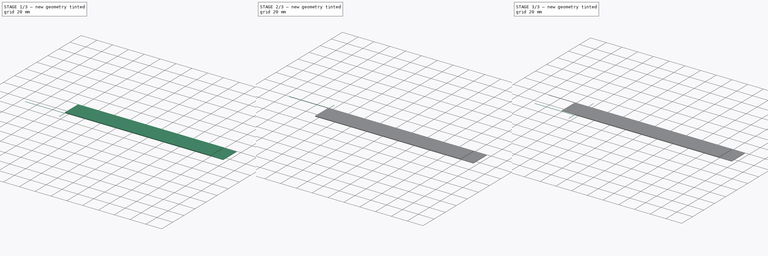
[diagram: build sequence overview — one tinted view per stage of 3, left to right]
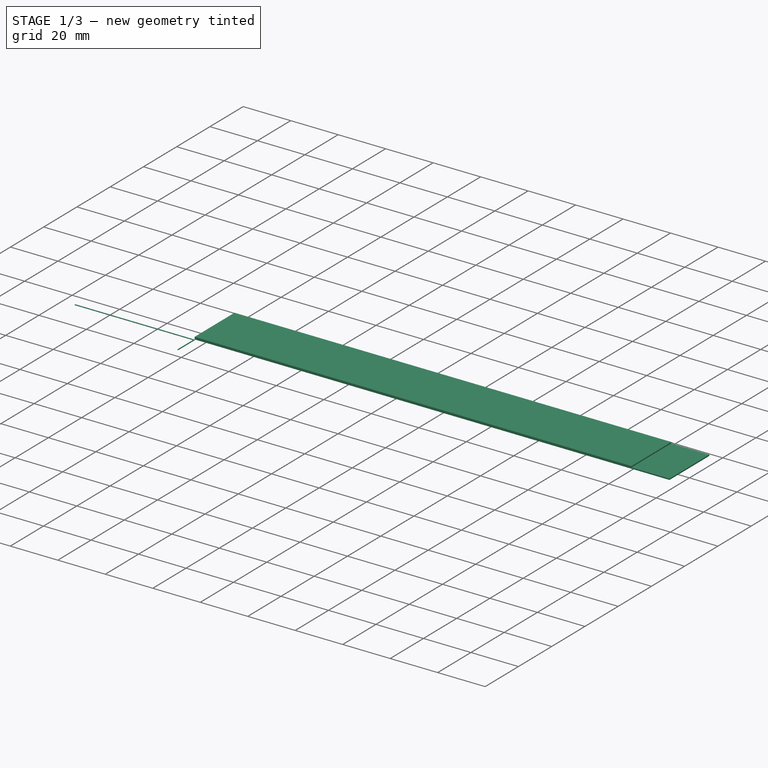
[diagram: stage 1 of 3 — iso view after this stage's code; geometry added in this stage tinted green]
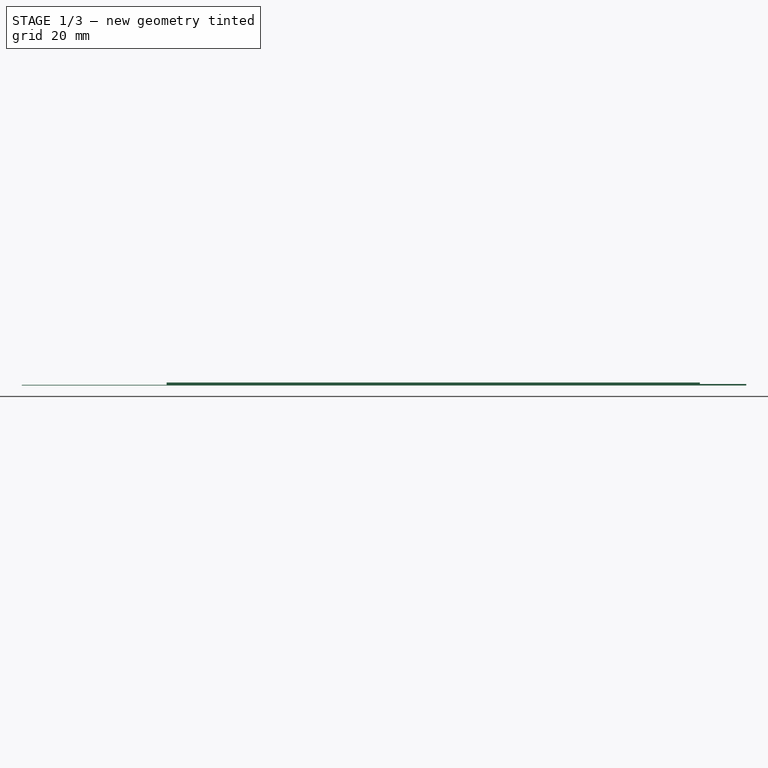
[diagram: stage 1 of 3 — front view after this stage's code; geometry added in this stage tinted green]
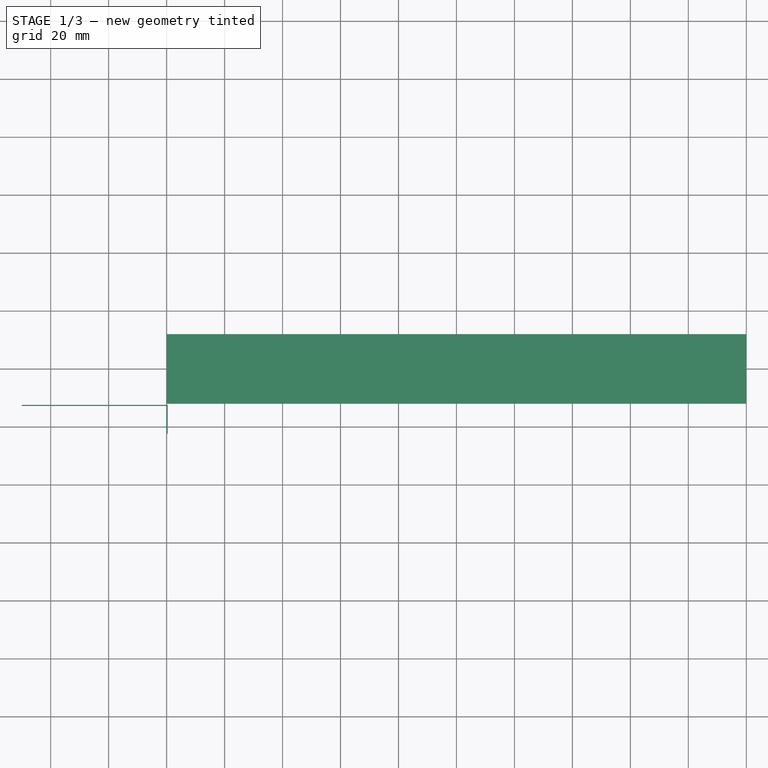
[diagram: stage 1 of 3 — top view after this stage's code; geometry added in this stage tinted green]
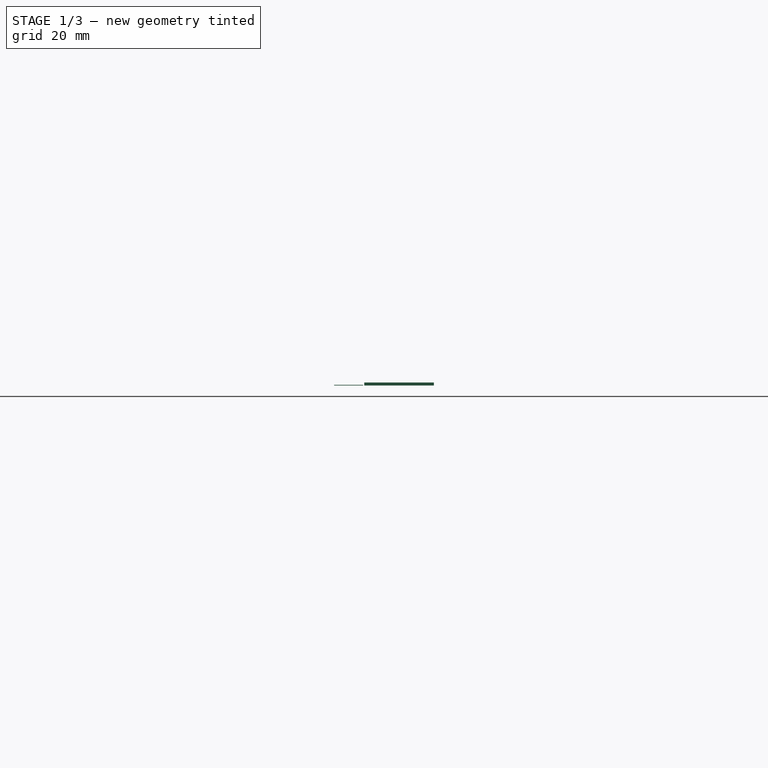
[diagram: stage 1 of 3 — right view after this stage's code; geometry added in this stage tinted green]
FCSTD DOCUMENT  (FreeCAD 0.20R29177 (Git))
Label: Elastic24x200_Endless
License: Creative Commons Attribution
LicenseURL: http://creativecommons.org/licenses/by/4.0/
objects: Sketcher::SketchObject×3, PartDesign::Pad×3, PartDesign::Body×3, Part::Mirroring×1, Part::Compound×1
note: 14 computed .brp shape members not serialized (recipe doc carries the construction recipe); baked Part::Feature solids carry a one-line shape summary decoded from their .brp

FEATURE [PartDesign::Body] Body  label="Band_Endless"
  Group = -> [Sketch,Pad]
  Origin = -> Origin
  Tip = -> Pad
FEATURE [Sketcher::SketchObject] Sketch001
  FullyConstrained = true
  MapMode = 5
  Support = -> [XY_Plane001]
  sketch-geometry (6):
    g0: LineSegment StartX=0.4 StartY=-22.4 StartZ=0 EndX=0.4 EndY=-12.4 EndZ=0
    g1: LineSegment StartX=0.4 StartY=-12.4 StartZ=0 EndX=-50 EndY=-12.4 EndZ=0
    g2: LineSegment StartX=-50 StartY=-12.4 StartZ=0 EndX=-50 EndY=-12.8 EndZ=0
    g3: LineSegment StartX=-50 StartY=-12.8 StartZ=0 EndX=0 EndY=-12.8 EndZ=0
    g4: LineSegment StartX=0 StartY=-12.8 StartZ=0 EndX=0 EndY=-22.4 EndZ=0
    g5: LineSegment StartX=0 StartY=-22.4 StartZ=0 EndX=0.4 EndY=-22.4 EndZ=0
  constraints (18):
    c: Coincident(g0,g1)
    c: Horizontal(g1)
    c: Coincident(g2,g3)
    c: Horizontal(g3)
    c: Coincident(g3,g4)
    c: Vertical(g4)
    c: Coincident(g4,g5)
    c: Coincident(g5,g0)
    c: Horizontal(g5)
    c: Equal(g2,g5)
    c: DistanceX(g5,g5) = 0.4
    c: Vertical(g2)
    c: Vertical(g0)
    c: PointOnObject(g3,g-2)
    c: DistanceY(g0,g0) = 10
    c: Coincident(g1,g2)
    c: DistanceY(g1,g-1) = 12.4
    c: DistanceX(g2,g4) = 50
FEATURE [PartDesign::Pad] Pad001
  Direction = (0,0,1)
  Length = 0.2
  Length2 = 10
  Profile = -> Sketch001
  ReferenceAxis = -> Sketch001 [N_Axis]
  Type = 0
FEATURE [Sketcher::SketchObject] Sketch002
  FullyConstrained = true
  MapMode = 5
  Placement = pos=(0,0,0) rot=(1,0,0;1.5708rad)
  Support = -> [XZ_Plane002]
  sketch-geometry (6):
    g0: LineSegment StartX=0 StartY=1 StartZ=0 EndX=184 EndY=1 EndZ=0
    g1: LineSegment StartX=200 StartY=0.5 StartZ=0 EndX=200 EndY=0 EndZ=0
    g2: LineSegment StartX=200 StartY=0 StartZ=0 EndX=0 EndY=0 EndZ=0
    g3: LineSegment StartX=0 StartY=0 StartZ=0 EndX=0 EndY=1 EndZ=0
    g4: LineSegment StartX=200 StartY=0.5 StartZ=0 EndX=184 EndY=0.5 EndZ=0
    g5: LineSegment StartX=184 StartY=0.5 StartZ=0 EndX=184 EndY=1 EndZ=0
  constraints (17):
    c: Horizontal(g0)
    c: Vertical(g1)
    c: PointOnObject(g2,g-1)
    c: Coincident(g3,g0)
    c: Vertical(g3)
    c: DistanceY(g2,g0) = 1
    c: Coincident(g1,g2)
    c: Coincident(g1,g4)
    c: Horizontal(g4)
    c: Coincident(g4,g5)
    c: Coincident(g5,g0)
    c: Vertical(g5)
    c: Equal(g5,g1)
    c: Coincident(g2,g-1)
    c: DistanceX(g2,g1) = 200
    c: DistanceX(g4,g1) = 16
    c: Coincident(g2,g3)
FEATURE [PartDesign::Pad] Pad002
  Direction = (0,-1,2e-16)
  Length = 24
  Length2 = 10
  Midplane = true
  Placement = pos=(0,0,0) rot=(1,0,0;1.5708rad)
  Profile = -> Sketch002
  ReferenceAxis = -> Sketch002 [N_Axis]
  Type = 0
FEATURE [PartDesign::Body] Body002  label="Band1st"
  Group = -> [Sketch002,Pad002]
  Origin = -> Origin002
  Tip = -> Pad002
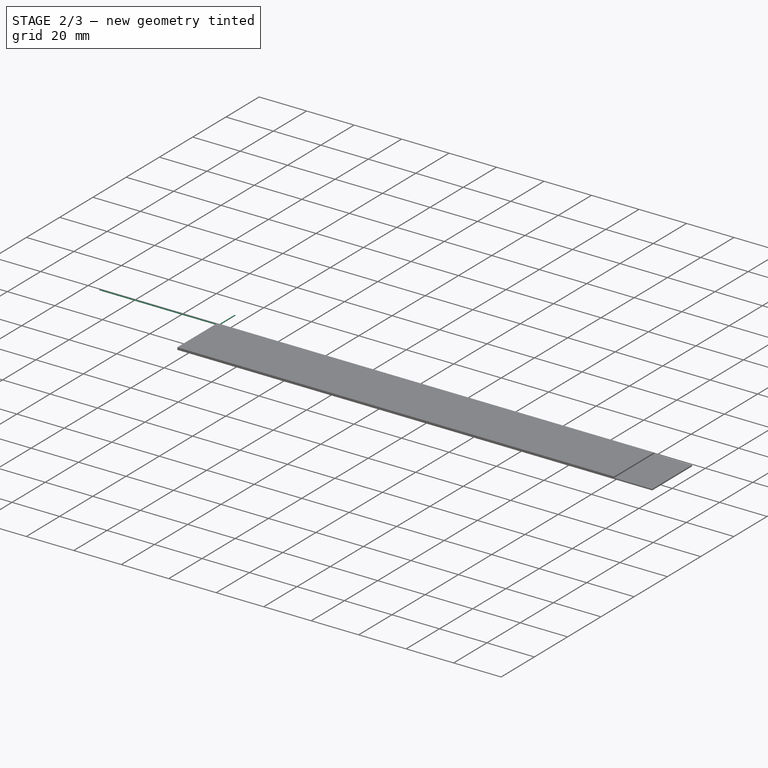
[diagram: stage 2 of 3 — iso view after this stage's code; geometry added in this stage tinted green]
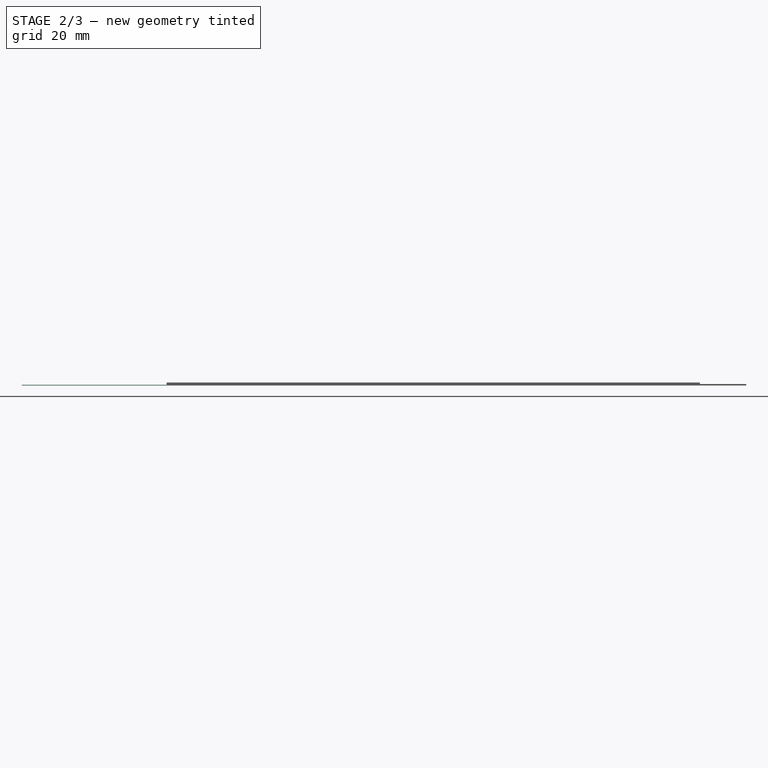
[diagram: stage 2 of 3 — front view after this stage's code; geometry added in this stage tinted green]
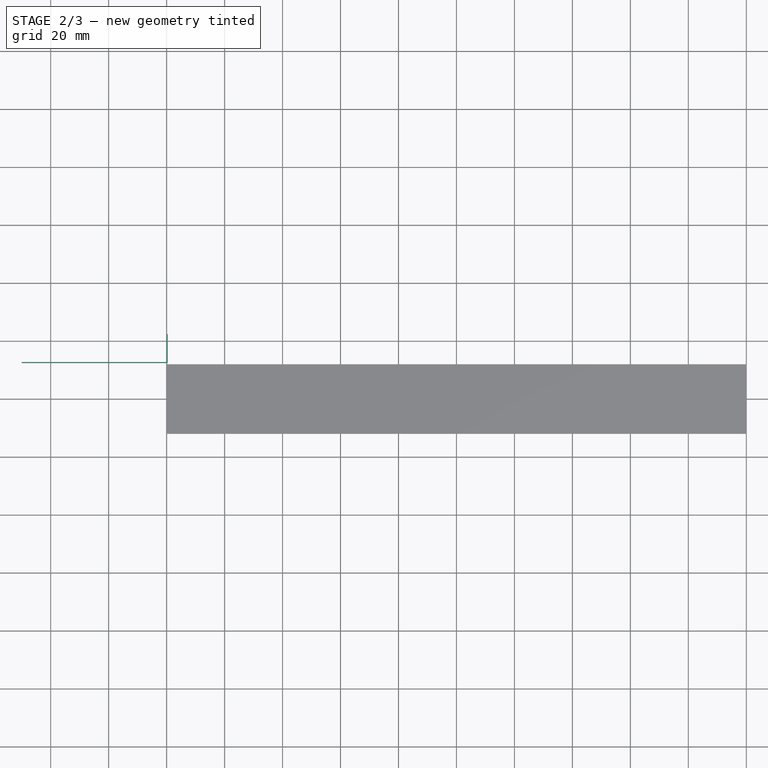
[diagram: stage 2 of 3 — top view after this stage's code; geometry added in this stage tinted green]
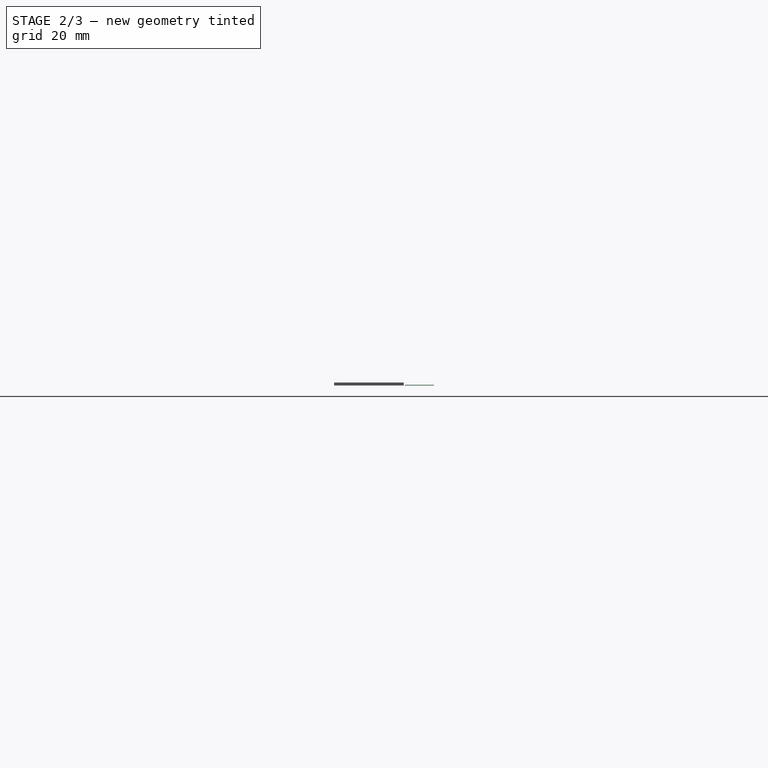
[diagram: stage 2 of 3 — right view after this stage's code; geometry added in this stage tinted green]
FEATURE [PartDesign::Body] Body001
  Group = -> [Sketch001,Pad001]
  Origin = -> Origin001
  Tip = -> Pad001
FEATURE [Part::Mirroring] Part__Mirroring  label="Body001 (Mirror #1)"
  Base = (0,0,0)
  Normal = (0,1,0)
  Source = -> Body001
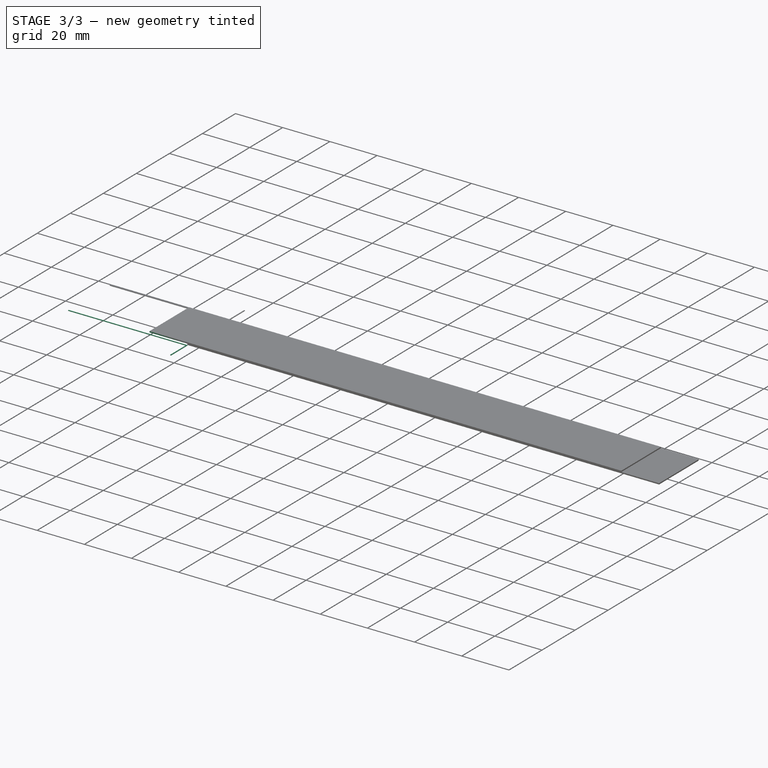
[diagram: stage 3 of 3 — iso view after this stage's code; geometry added in this stage tinted green]
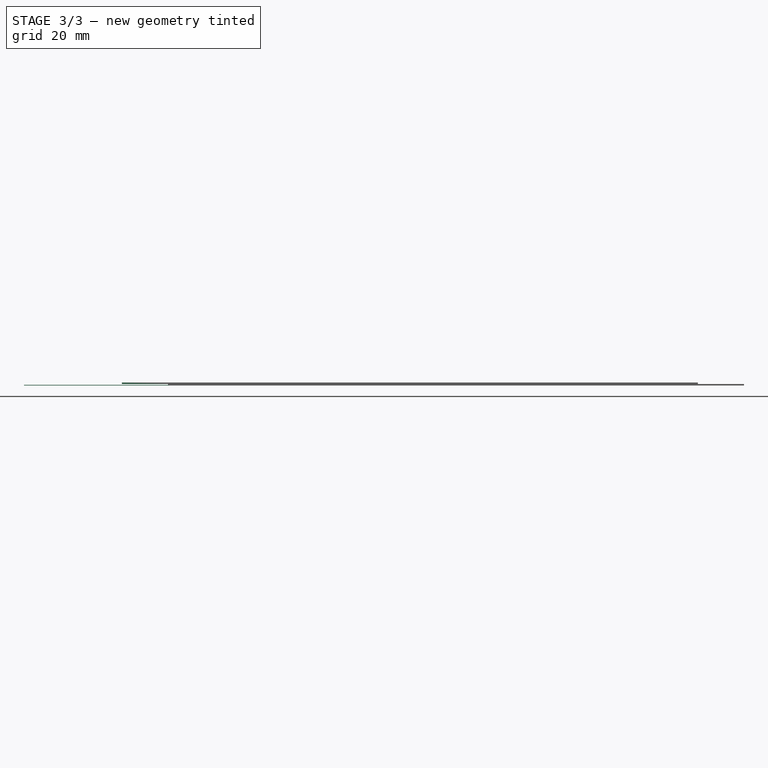
[diagram: stage 3 of 3 — front view after this stage's code; geometry added in this stage tinted green]
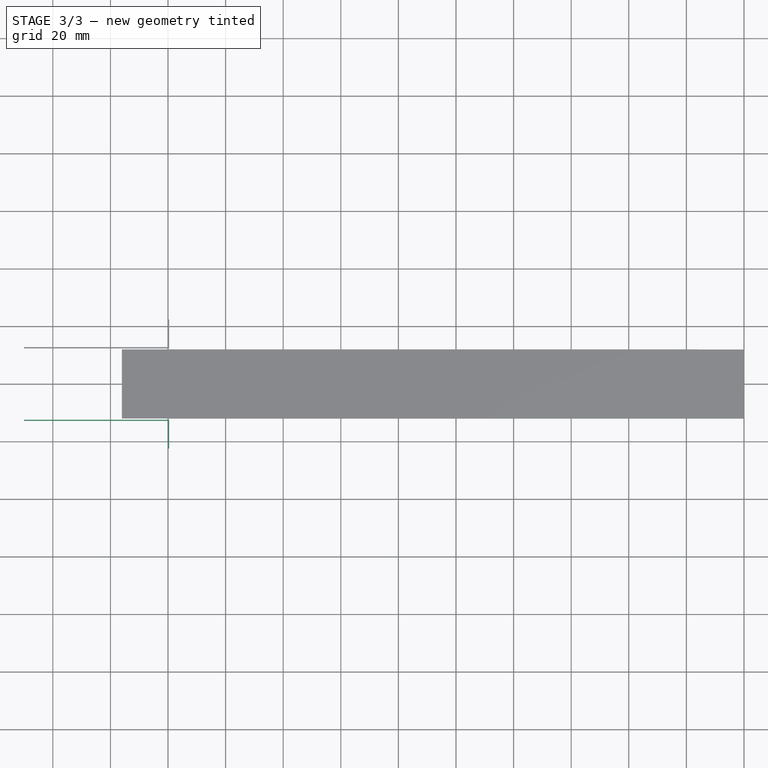
[diagram: stage 3 of 3 — top view after this stage's code; geometry added in this stage tinted green]
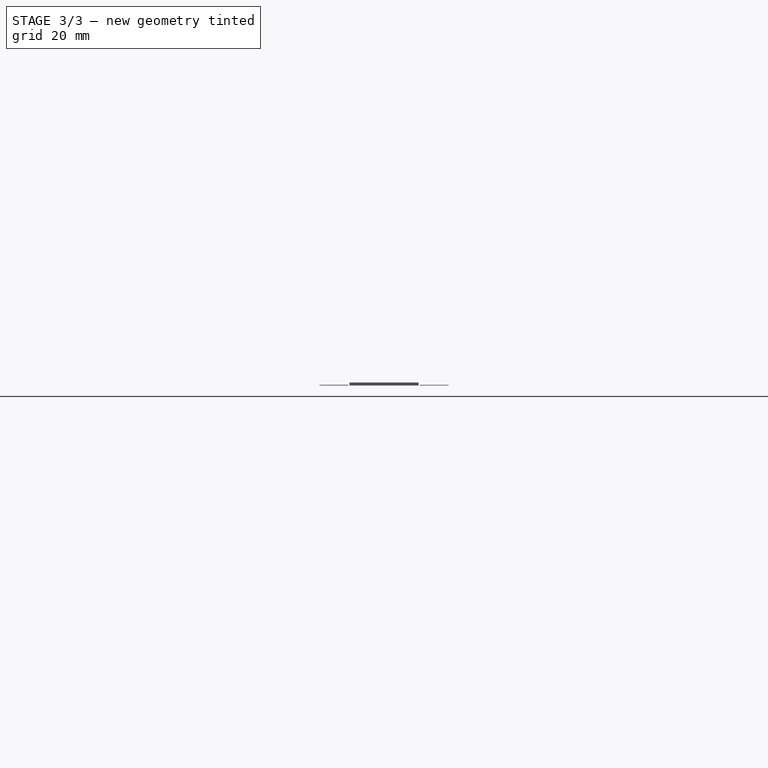
[diagram: stage 3 of 3 — right view after this stage's code; geometry added in this stage tinted green]
FEATURE [Sketcher::SketchObject] Sketch
  FullyConstrained = true
  MapMode = 5
  Placement = pos=(0,0,0) rot=(1,0,0;1.5708rad)
  Support = -> [XZ_Plane]
  sketch-geometry (8):
    g0: LineSegment StartX=-16 StartY=1 StartZ=0 EndX=184 EndY=1 EndZ=0
    g1: LineSegment StartX=200 StartY=0.5 StartZ=0 EndX=200 EndY=0 EndZ=0
    g2: LineSegment StartX=200 StartY=0 StartZ=0 EndX=0 EndY=0 EndZ=0
    g3: LineSegment StartX=0 StartY=0 StartZ=0 EndX=0 EndY=0.5 EndZ=0
    g4: LineSegment StartX=0 StartY=0.5 StartZ=0 EndX=-16 EndY=0.5 EndZ=0
    g5: LineSegment StartX=-16 StartY=0.5 StartZ=0 EndX=-16 EndY=1 EndZ=0
    g6: LineSegment StartX=200 StartY=0.5 StartZ=0 EndX=184 EndY=0.5 EndZ=0
    g7: LineSegment StartX=184 StartY=0.5 StartZ=0 EndX=184 EndY=1 EndZ=0
  constraints (23):
    c: Horizontal(g0)
    c: Vertical(g1)
    c: PointOnObject(g2,g-1)
    c: Coincident(g2,g3)
    c: Vertical(g3)
    c: Coincident(g3,g4)
    c: Horizontal(g4)
    c: Coincident(g4,g5)
    c: Coincident(g5,g0)
    c: Vertical(g5)
    c: DistanceX(g4,g2) = 16
    c: Equal(g3,g5)
    c: DistanceY(g2,g0) = 1
    c: Coincident(g1,g2)
    c: Coincident(g1,g6)
    c: Horizontal(g6)
    c: Coincident(g6,g7)
    c: Coincident(g7,g0)
    c: Vertical(g7)
    c: Equal(g7,g1)
    c: Equal(g4,g6)
    c: Coincident(g2,g-1)
    c: DistanceX(g2,g1) = 200
FEATURE [PartDesign::Pad] Pad
  Direction = (0,-1,-2e-16)
  Length = 24
  Length2 = 10
  Midplane = true
  Placement = pos=(0,0,0) rot=(1,0,0;1.5708rad)
  Profile = -> Sketch
  ReferenceAxis = -> Sketch [N_Axis]
  Type = 0
FEATURE [Part::Compound] Compound
  Links = -> [Body001,Part__Mirroring]
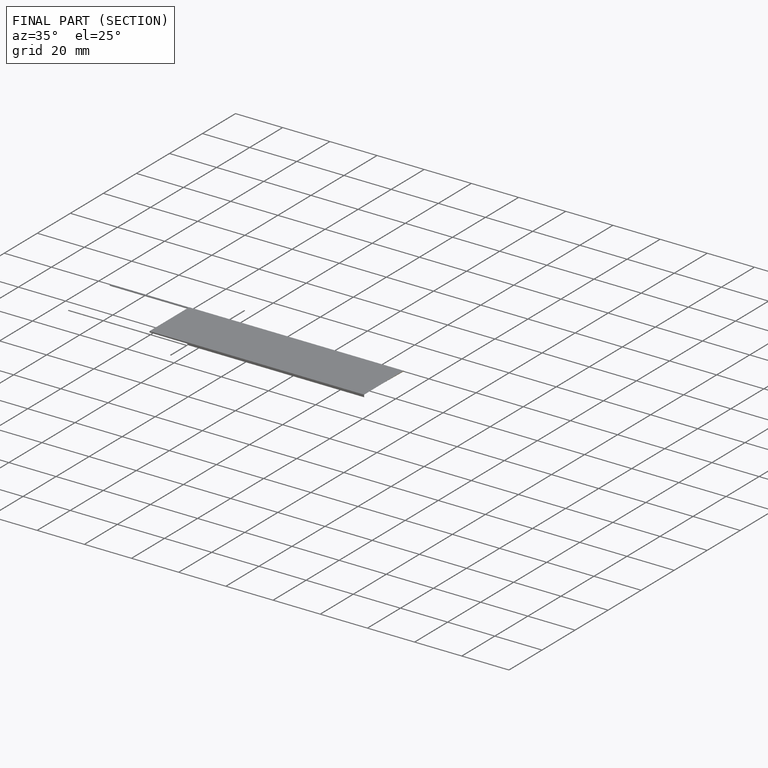
[diagram: finished part — half-section view (interior)]
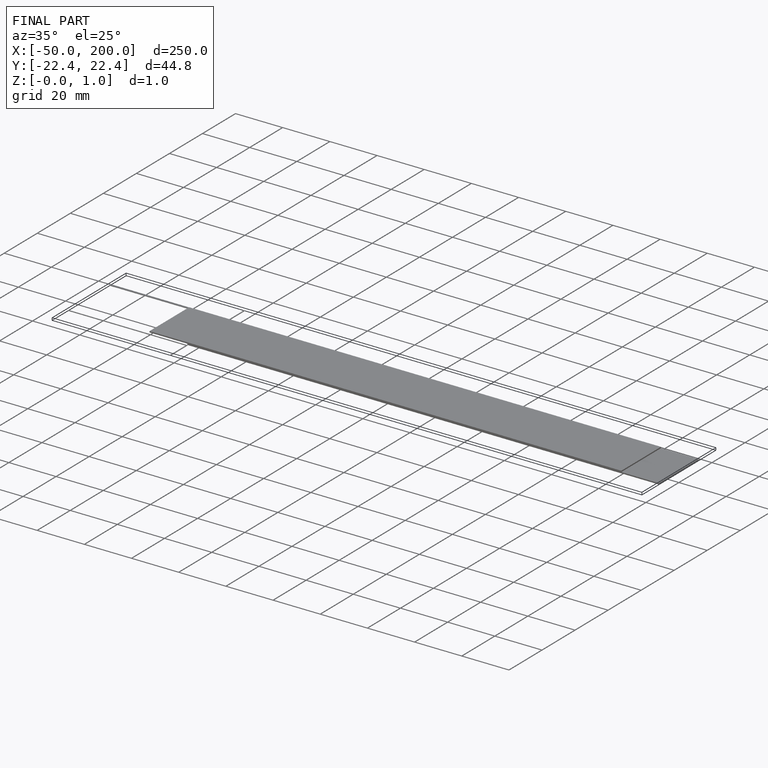
[diagram: finished part — iso view with bounding-box wireframe]
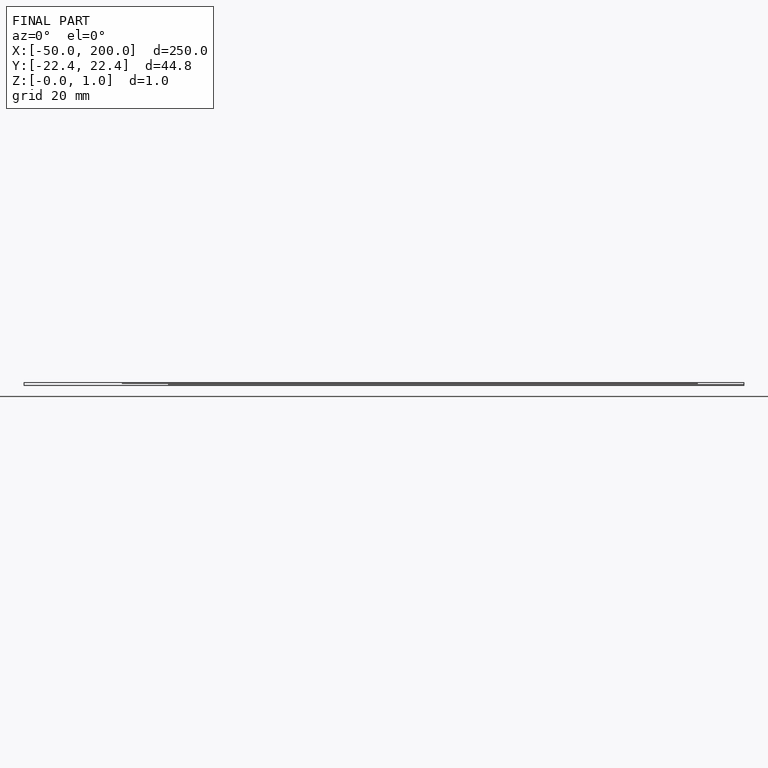
[diagram: finished part — front view with bounding-box wireframe]
